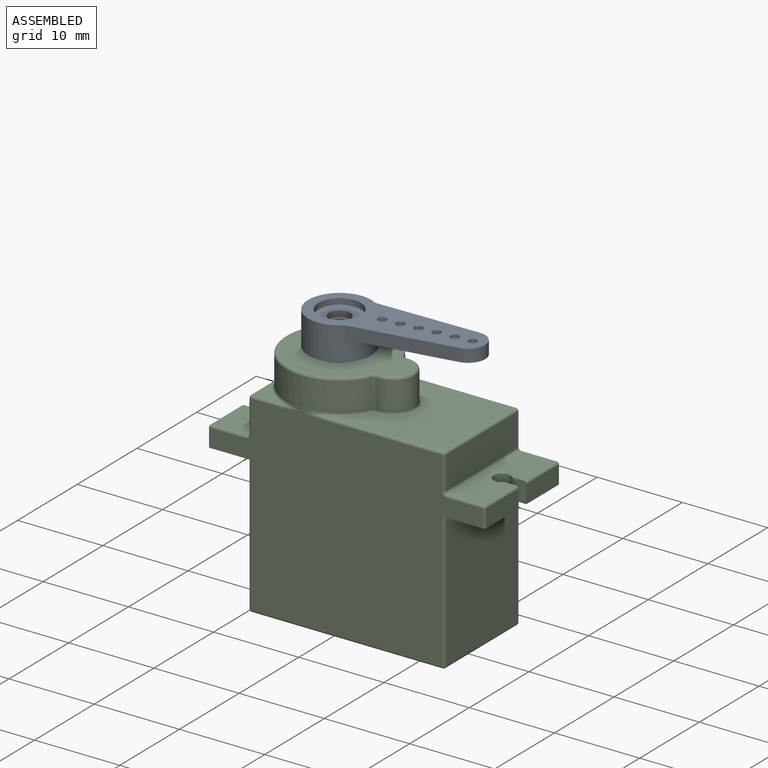
[diagram: assembled view]
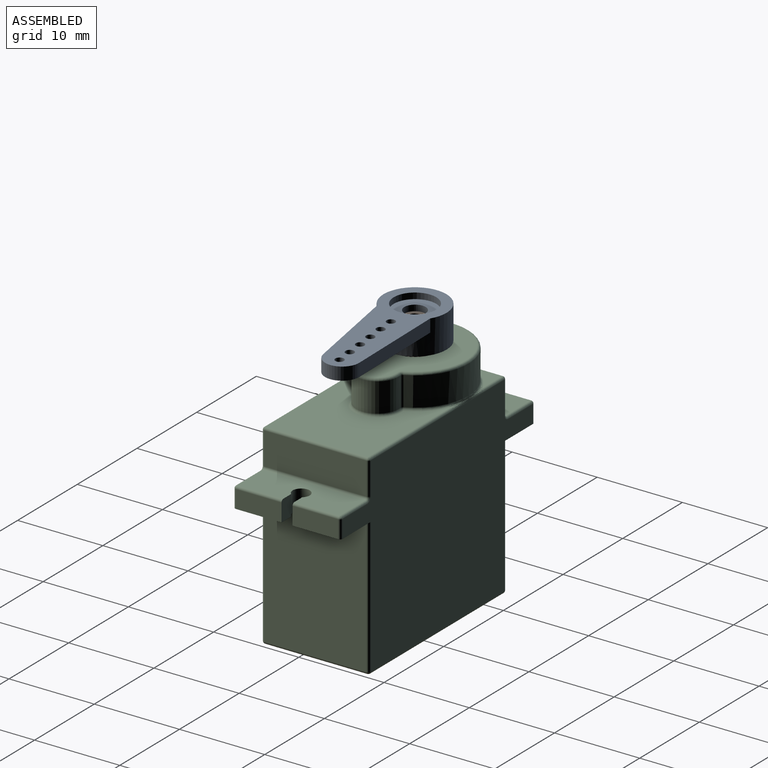
[diagram: assembled view, second angle]
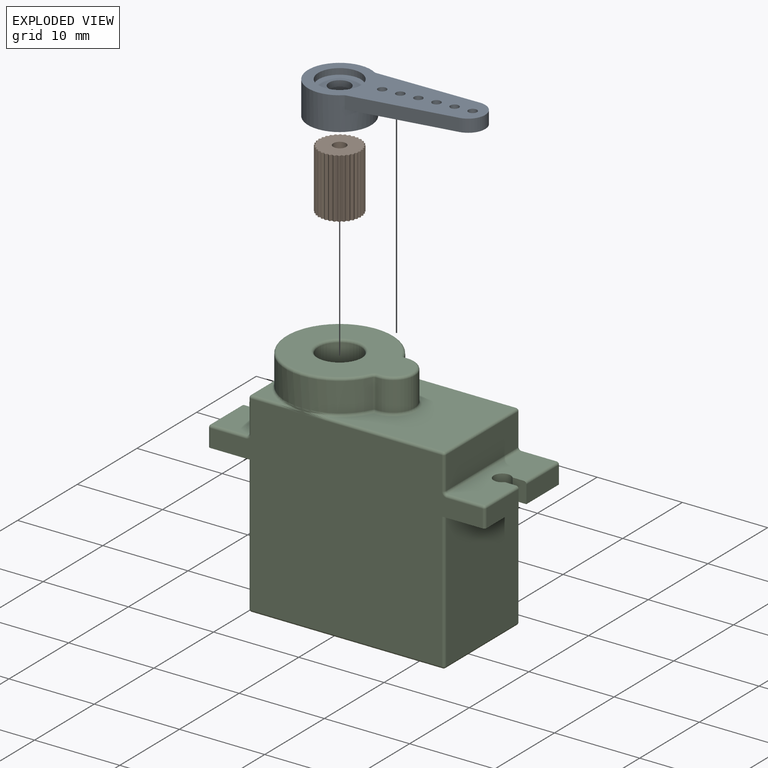
[diagram: exploded view]
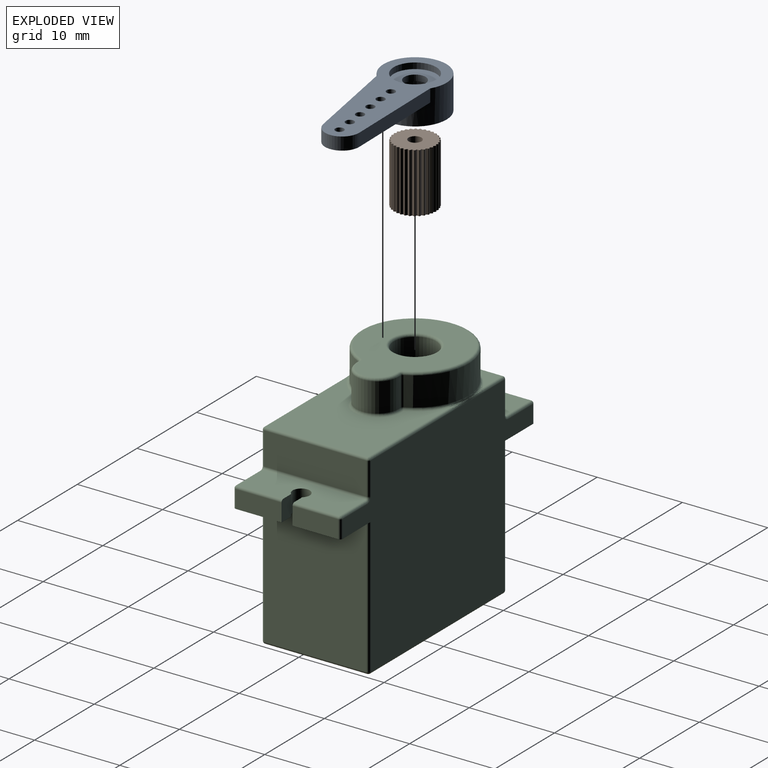
[diagram: exploded view, second angle]
ASSEMBLY  parts=3 mates=2
PART A: 18 faces, bbox 19.9x7.4x3.9 mm
  f0: cylinder r=1.25mm len=2.5mm, axis (0,0,1), area 5.5mm2, adj f1,f7
  f1: plane 5x5mm, normal (0,0,1), area 14.7mm2, adj f0,f2
  f2: cylinder r=2.5mm len=5mm, axis (0,0,1), area 11mm2, adj f1,f3
  f3: plane 19.9x7.4mm, normal (0,0,1), area 78.2mm2, adj f2,f4,f8,f9,f10,f11,f12,f13
  f4: cylinder r=3.7mm len=7.4mm, axis (0,0,1), area 80.4mm2, adj f3,f5,f8,f9,f17
  f5: plane 7.4x7.4mm, normal (0,0,-1), area 24.9mm2, adj f4,f6
  f6: cylinder r=2.4mm len=4.8mm, axis (0,0,1), area 37.7mm2, adj f5,f7
  f7: plane 4.8x4.8mm, normal (0,0,-1), area 13.2mm2, adj f0,f6
  f8: plane 12.12x1.5mm, normal (0.08,1,0), area 18.2mm2, adj f3,f4,f16,f17
  f9: plane 12.12x1.5mm, normal (0.08,-1,0), area 18.2mm2, adj f3,f4,f16,f17
  f10: cylinder r=0.5mm len=1.5mm, axis (0,0,-1), area 4.7mm2, adj f3,f17
  f11: cylinder r=0.5mm len=1.5mm, axis (0,0,-1), area 4.7mm2, adj f3,f17
  f12: cylinder r=0.5mm len=1.5mm, axis (0,0,-1), area 4.7mm2, adj f3,f17
  f13: cylinder r=0.5mm len=1.5mm, axis (0,0,-1), area 4.7mm2, adj f3,f17
  f14: cylinder r=0.5mm len=1.5mm, axis (0,0,-1), area 4.7mm2, adj f3,f17
  f15: cylinder r=0.5mm len=1.5mm, axis (0,0,-1), area 4.7mm2, adj f3,f17
  f16: cylinder r=2mm len=3.99mm, axis (0,0,-1), area 9mm2, adj f3,f8,f9,f17
  f17: plane 13.97x5.9mm, normal (0,0,-1), area 54.8mm2, adj f4,f8,f9,f10,f11,f12,f13,f14
PART B: 99 faces, bbox 5x5x7 mm
  f0: plane 4.96x4.96mm, normal (0,0,1), area 16.3mm2, adj f1,f2,f3,f4,f5,f6,f7,f8
  f1: plane 7x0.22mm, normal (-0.39,0.92,0), area 1.7mm2, adj f0,f2,f94,f95
  f2: cylinder r=0.08mm len=7mm, axis (0,0,-1), area 0.9mm2, adj f0,f1,f3,f95
  f3: plane 7x0.22mm, normal (-0.93,-0.38,0), area 1.7mm2, adj f0,f2,f4,f95
  f4: plane 7x0.2mm, normal (-0.56,0.83,0), area 1.7mm2, adj f0,f3,f5,f95
  f5: cylinder r=0.08mm len=7mm, axis (0,0,-1), area 0.9mm2, adj f0,f4,f6,f95
  f6: plane 7x0.2mm, normal (-0.83,-0.55,0), area 1.7mm2, adj f0,f5,f7,f95
  f7: plane 7x0.17mm, normal (-0.71,0.7,0), area 1.7mm2, adj f0,f6,f8,f95
  f8: cylinder r=0.08mm len=7mm, axis (0,0,-1), area 0.9mm2, adj f0,f7,f9,f95
  f9: plane 7x0.17mm, normal (-0.71,-0.7,0), area 1.7mm2, adj f0,f8,f10,f95
  f10: plane 7x0.2mm, normal (-0.83,0.55,0), area 1.7mm2, adj f0,f9,f11,f95
  f11: cylinder r=0.08mm len=7mm, axis (0,0,-1), area 0.9mm2, adj f0,f10,f12,f95
  f12: plane 7x0.2mm, normal (-0.56,-0.83,0), area 1.7mm2, adj f0,f11,f13,f95
  f13: plane 7x0.22mm, normal (-0.93,0.38,0), area 1.7mm2, adj f0,f12,f14,f95
  f14: cylinder r=0.08mm len=7mm, axis (0,0,-1), area 0.9mm2, adj f0,f13,f15,f95
  f15: plane 7x0.22mm, normal (-0.39,-0.92,0), area 1.7mm2, adj f0,f14,f16,f95
  f16: plane 7x0.23mm, normal (-0.98,0.19,0), area 1.7mm2, adj f0,f15,f17,f95
  f17: cylinder r=0.08mm len=7mm, axis (0,0,-1), area 0.9mm2, adj f0,f16,f18,f95
  f18: plane 7x0.23mm, normal (-0.2,-0.98,0), area 1.7mm2, adj f0,f17,f19,f95
  f19: plane 7x0.24mm, normal (-1,0,0), area 1.7mm2, adj f0,f18,f20,f95
  f20: cylinder r=0.08mm len=7mm, axis (0,0,-1), area 0.9mm2, adj f0,f19,f21,f95
  f21: plane 7x0.24mm, normal (0,-1,0), area 1.7mm2, adj f0,f20,f22,f95
  f22: plane 7x0.23mm, normal (-0.98,-0.2,0), area 1.7mm2, adj f0,f21,f23,f95
  f23: cylinder r=0.08mm len=7mm, axis (0,0,-1), area 0.9mm2, adj f0,f22,f24,f95
  f24: plane 7x0.23mm, normal (0.19,-0.98,0), area 1.7mm2, adj f0,f23,f25,f95
  f25: plane 7x0.22mm, normal (-0.92,-0.39,0), area 1.7mm2, adj f0,f24,f26,f95
  f26: cylinder r=0.08mm len=7mm, axis (0,0,-1), area 0.9mm2, adj f0,f25,f27,f95
  f27: plane 7x0.22mm, normal (0.38,-0.93,0), area 1.7mm2, adj f0,f26,f28,f95
  f28: plane 7x0.2mm, normal (-0.83,-0.56,0), area 1.7mm2, adj f0,f27,f29,f95
  f29: cylinder r=0.08mm len=7mm, axis (0,0,-1), area 0.9mm2, adj f0,f28,f30,f95
  f30: plane 7x0.2mm, normal (0.55,-0.83,0), area 1.7mm2, adj f0,f29,f31,f95
  f31: plane 7x0.17mm, normal (-0.7,-0.71,0), area 1.7mm2, adj f0,f30,f32,f95
  f32: cylinder r=0.08mm len=7mm, axis (0,0,-1), area 0.9mm2, adj f0,f31,f33,f95
  f33: plane 7x0.17mm, normal (0.7,-0.71,0), area 1.7mm2, adj f0,f32,f34,f95
  f34: plane 7x0.2mm, normal (-0.55,-0.83,0), area 1.7mm2, adj f0,f33,f35,f95
  f35: cylinder r=0.08mm len=7mm, axis (0,0,-1), area 0.9mm2, adj f0,f34,f36,f95
  f36: plane 7x0.2mm, normal (0.83,-0.56,0), area 1.7mm2, adj f0,f35,f37,f95
  f37: plane 7x0.22mm, normal (-0.38,-0.93,0), area 1.7mm2, adj f0,f36,f38,f95
  f38: cylinder r=0.08mm len=7mm, axis (0,0,-1), area 0.9mm2, adj f0,f37,f39,f95
  f39: plane 7x0.22mm, normal (0.92,-0.39,0), area 1.7mm2, adj f0,f38,f40,f95
  f40: plane 7x0.23mm, normal (-0.19,-0.98,0), area 1.7mm2, adj f0,f39,f41,f95
  f41: cylinder r=0.08mm len=7mm, axis (0,0,-1), area 0.9mm2, adj f0,f40,f42,f95
  f42: plane 7x0.23mm, normal (0.98,-0.2,0), area 1.7mm2, adj f0,f41,f43,f95
  f43: plane 7x0.24mm, normal (0,-1,0), area 1.7mm2, adj f0,f42,f44,f95
  f44: cylinder r=0.08mm len=7mm, axis (0,0,-1), area 0.9mm2, adj f0,f43,f45,f95
  f45: plane 7x0.24mm, normal (1,0,0), area 1.7mm2, adj f0,f44,f46,f95
  f46: plane 7x0.23mm, normal (0.2,-0.98,0), area 1.7mm2, adj f0,f45,f47,f95
  f47: cylinder r=0.08mm len=7mm, axis (0,0,-1), area 0.9mm2, adj f0,f46,f48,f95
  f48: plane 7x0.23mm, normal (0.98,0.19,0), area 1.7mm2, adj f0,f47,f49,f95
  f49: plane 7x0.22mm, normal (0.39,-0.92,0), area 1.7mm2, adj f0,f48,f50,f95
  f50: cylinder r=0.08mm len=7mm, axis (0,0,-1), area 0.9mm2, adj f0,f49,f51,f95
  f51: plane 7x0.22mm, normal (0.93,0.38,0), area 1.7mm2, adj f0,f50,f52,f95
  f52: plane 7x0.2mm, normal (0.56,-0.83,0), area 1.7mm2, adj f0,f51,f53,f95
  f53: cylinder r=0.08mm len=7mm, axis (0,0,-1), area 0.9mm2, adj f0,f52,f54,f95
  f54: plane 7x0.2mm, normal (0.83,0.55,0), area 1.7mm2, adj f0,f53,f55,f95
  f55: plane 7x0.17mm, normal (0.71,-0.7,0), area 1.7mm2, adj f0,f54,f56,f95
  f56: cylinder r=0.08mm len=7mm, axis (0,0,-1), area 0.9mm2, adj f0,f55,f57,f95
  f57: plane 7x0.17mm, normal (0.71,0.7,0), area 1.7mm2, adj f0,f56,f58,f95
  f58: plane 7x0.2mm, normal (0.83,-0.55,0), area 1.7mm2, adj f0,f57,f59,f95
  f59: cylinder r=0.08mm len=7mm, axis (0,0,-1), area 0.9mm2, adj f0,f58,f60,f95
  f60: plane 7x0.2mm, normal (0.56,0.83,0), area 1.7mm2, adj f0,f59,f61,f95
  f61: plane 7x0.22mm, normal (0.93,-0.38,0), area 1.7mm2, adj f0,f60,f62,f95
  f62: cylinder r=0.08mm len=7mm, axis (0,0,-1), area 0.9mm2, adj f0,f61,f63,f95
  f63: plane 7x0.22mm, normal (0.39,0.92,0), area 1.7mm2, adj f0,f62,f64,f95
  f64: plane 7x0.23mm, normal (0.98,-0.19,0), area 1.7mm2, adj f0,f63,f65,f95
  f65: cylinder r=0.08mm len=7mm, axis (0,0,-1), area 0.9mm2, adj f0,f64,f66,f95
  f66: plane 7x0.23mm, normal (0.2,0.98,0), area 1.7mm2, adj f0,f65,f67,f95
  f67: plane 7x0.24mm, normal (1,0,0), area 1.7mm2, adj f0,f66,f68,f95
  f68: cylinder r=0.08mm len=7mm, axis (0,0,-1), area 0.9mm2, adj f0,f67,f69,f95
  f69: plane 7x0.24mm, normal (0,1,0), area 1.7mm2, adj f0,f68,f70,f95
  f70: plane 7x0.23mm, normal (0.98,0.2,0), area 1.7mm2, adj f0,f69,f71,f95
  f71: cylinder r=0.08mm len=7mm, axis (0,0,-1), area 0.9mm2, adj f0,f70,f72,f95
  f72: plane 7x0.23mm, normal (-0.19,0.98,0), area 1.7mm2, adj f0,f71,f73,f95
  f73: plane 7x0.22mm, normal (0.92,0.39,0), area 1.7mm2, adj f0,f72,f74,f95
  f74: cylinder r=0.08mm len=7mm, axis (0,0,-1), area 0.9mm2, adj f0,f73,f75,f95
  f75: plane 7x0.22mm, normal (-0.38,0.93,0), area 1.7mm2, adj f0,f74,f76,f95
  f76: plane 7x0.2mm, normal (0.83,0.56,0), area 1.7mm2, adj f0,f75,f77,f95
  f77: cylinder r=0.08mm len=7mm, axis (0,0,-1), area 0.9mm2, adj f0,f76,f78,f95
  f78: plane 7x0.2mm, normal (-0.55,0.83,0), area 1.7mm2, adj f0,f77,f79,f95
  f79: plane 7x0.17mm, normal (0.7,0.71,0), area 1.7mm2, adj f0,f78,f80,f95
  f80: cylinder r=0.08mm len=7mm, axis (0,0,-1), area 0.9mm2, adj f0,f79,f81,f95
  f81: plane 7x0.17mm, normal (-0.7,0.71,0), area 1.7mm2, adj f0,f80,f82,f95
  f82: plane 7x0.2mm, normal (0.55,0.83,0), area 1.7mm2, adj f0,f81,f83,f95
  f83: cylinder r=0.08mm len=7mm, axis (0,0,-1), area 0.9mm2, adj f0,f82,f84,f95
  f84: plane 7x0.2mm, normal (-0.83,0.56,0), area 1.7mm2, adj f0,f83,f85,f95
  f85: plane 7x0.22mm, normal (0.38,0.93,0), area 1.7mm2, adj f0,f84,f86,f95
  f86: cylinder r=0.08mm len=7mm, axis (0,0,-1), area 0.9mm2, adj f0,f85,f87,f95
  f87: plane 7x0.22mm, normal (-0.92,0.39,0), area 1.7mm2, adj f0,f86,f88,f95
  f88: plane 7x0.23mm, normal (0.19,0.98,0), area 1.7mm2, adj f0,f87,f89,f95
  f89: cylinder r=0.08mm len=7mm, axis (0,0,-1), area 0.9mm2, adj f0,f88,f90,f95
  f90: plane 7x0.23mm, normal (-0.98,0.2,0), area 1.7mm2, adj f0,f89,f91,f95
  f91: plane 7x0.24mm, normal (0,1,0), area 1.7mm2, adj f0,f90,f92,f95
  f92: cylinder r=0.08mm len=7mm, axis (0,0,-1), area 0.9mm2, adj f0,f91,f93,f95
  f93: plane 7x0.24mm, normal (-1,0,0), area 1.7mm2, adj f0,f92,f95,f97
  f94: plane 7x0.23mm, normal (-0.98,-0.19,0), area 1.7mm2, adj f0,f1,f95,f98
  f95: plane 4.96x4.96mm, normal (0,0,-1), area 16.3mm2, adj f1,f2,f3,f4,f5,f6,f7,f8
  f96: cylinder r=0.75mm len=7mm, axis (0,0,-1), area 33mm2, adj f0,f95
  f97: plane 7x0.23mm, normal (-0.2,0.98,0), area 1.7mm2, adj f0,f93,f95,f98
  f98: cylinder r=0.08mm len=7mm, axis (0,0,-1), area 0.9mm2, adj f0,f94,f95,f97
PART C: 117 faces, bbox 32.5x13.6x27 mm
  f0: plane 12x3.8mm, normal (-1,0,0), area 45.6mm2, adj f43,f44,f61,f62,f68,f69,f74
  f1: plane 5.35x2.1mm, normal (1,0,0), area 11.2mm2, adj f4,f29,f99,f102
  f2: plane 5.35x2.1mm, normal (-1,0,0), area 11.2mm2, adj f3,f26,f49,f50
  f3: plane 12.6x5.05mm, normal (0,0,-1), area 54.8mm2, adj f2,f9,f10,f11,f17,f25,f26,f27
  f4: plane 12.6x5.05mm, normal (0,0,-1), area 54.8mm2, adj f1,f9,f10,f13,f14,f28,f29,f30
  f5: plane 12x4.15mm, normal (0,0,1), area 45.2mm2, adj f28,f29,f30,f86,f93,f97,f100,f102
  f6: plane 12x4.15mm, normal (0,0,1), area 45.2mm2, adj f25,f26,f27,f46,f50,f51,f56,f61
  f7: plane 13.65x12mm, normal (0,0,1), area 118.8mm2, adj f60,f65,f72,f73,f83,f84,f90,f91
  f8: plane 3.25x3.25mm, normal (0,0,1), area 4mm2, adj f74,f75,f76
  f9: plane 31.9x22.4mm, normal (0,1,0), area 521.9mm2, adj f3,f4,f36,f47,f51,f55,f62,f76
  f10: plane 31.9x22.4mm, normal (0,-1,0), area 521.9mm2, adj f3,f4,f34,f35,f49,f56,f66,f68
  f11: plane 15.9x12mm, normal (-1,0,0), area 190.8mm2, adj f3,f105,f107,f108
  f12: plane 22.4x12mm, normal (0,0,-1), area 268.8mm2, adj f108,f109,f113,f114
  f13: plane 15.9x12mm, normal (1,0,0), area 190.8mm2, adj f4,f110,f114,f116
  f14: plane 5.35x2.1mm, normal (1,0,0), area 11.2mm2, adj f4,f30,f85,f86
  f15: plane 12x3.8mm, normal (1,0,0), area 45.6mm2, adj f91,f92,f96,f97
  f16: plane 3.25x3.25mm, normal (0,0,1), area 4mm2, adj f69,f81,f82
  f17: plane 5.35x2.1mm, normal (-1,0,0), area 11.2mm2, adj f3,f25,f46,f47
  f18: plane 14.5x12mm, normal (0,0,1), area 98mm2, adj f52,f53,f57,f58,f59,f64,f103
  f19: cylinder r=2.5mm len=5mm, axis (0,0,-1), area 26.7mm2, adj f20,f22,f53,f65
  f20: plane 3.4x0.32mm, normal (0,-1,0), area 1.1mm2, adj f19,f59,f71,f72
  f21: cylinder r=2.5mm len=5mm, axis (0,0,-1), area 53.4mm2, adj f103,f104
  f22: plane 3.4x0.32mm, normal (0,1,0), area 1.1mm2, adj f19,f52,f60,f63
  f23: cylinder r=6.3mm len=12.6mm, axis (0,0,-1), area 115.8mm2, adj f31,f32,f38,f39,f41,f58,f63,f71
  f24: plane 4.4x4.4mm, normal (0,0,1), area 15.2mm2, adj f104
  f25: plane 2.4x1.62mm, normal (0,-1,0), area 3.9mm2, adj f3,f6,f17,f27,f46
  f26: plane 2.4x1.62mm, normal (0,1,0), area 3.9mm2, adj f2,f3,f6,f27,f50
  f27: cylinder r=1mm len=2.4mm, axis (0,0,-1), area 11.7mm2, adj f3,f6,f25,f26
  f28: cylinder r=1mm len=2.4mm, axis (0,0,-1), area 11.7mm2, adj f4,f5,f29,f30
  f29: plane 2.4x1.62mm, normal (0,1,0), area 3.9mm2, adj f1,f4,f5,f28,f102
  f30: plane 2.4x1.62mm, normal (0,-1,0), area 3.9mm2, adj f4,f5,f14,f28,f86
  f31: bspline ~2.65x0.57mm, area 0.6mm2, adj f23,f32,f83,f87
  f32: bspline ~2.65x0.57mm, area 0.6mm2, adj f23,f31,f33,f82
  f33: bspline ~2.75x0.48mm, area 0.5mm2, adj f32,f34,f81,f82
  f34: bspline ~2.75x0.3mm, area 0.7mm2, adj f10,f33,f35,f81
  f35: bspline ~2.75x0.3mm, area 0.7mm2, adj f10,f34,f87,f90
  f36: bspline ~2.75x0.3mm, area 0.7mm2, adj f9,f37,f76,f80
  f37: bspline ~2.75x0.48mm, area 0.5mm2, adj f36,f38,f75,f76
  f38: bspline ~2.65x0.57mm, area 0.6mm2, adj f23,f37,f39,f75
  f39: bspline ~2.65x0.57mm, area 0.6mm2, adj f23,f38,f40,f73
  f40: bspline ~2.75x0.48mm, area 0.5mm2, adj f39,f73,f80,f84
  f41: bspline ~2.65x0.57mm, area 0.6mm2, adj f23,f42,f75,f78
  f42: bspline ~2.75x0.48mm, area 0.5mm2, adj f41,f43,f74,f75
  f43: bspline ~2.75x0.3mm, area 0.7mm2, adj f0,f42,f44,f74
  f44: bspline ~2.75x0.3mm, area 0.7mm2, adj f0,f43,f45,f69
  f45: bspline ~2.75x0.48mm, area 0.5mm2, adj f44,f69,f78,f82
  f46: cylinder r=0.3mm len=5.35mm, axis (0,-1,0), area 2.5mm2, adj f6,f17,f25,f48
  f47: cylinder r=0.3mm len=2.1mm, axis (0,0,-1), area 1mm2, adj f3,f9,f17,f48
  f48: sphere r=0.3mm, area 0.2mm2, adj f46,f47,f51
  f49: cylinder r=0.3mm len=2.1mm, axis (0,0,1), area 1mm2, adj f2,f3,f10,f54
  f50: cylinder r=0.3mm len=5.35mm, axis (0,-1,0), area 2.5mm2, adj f2,f6,f26,f54
  f51: cylinder r=0.3mm len=4.15mm, axis (-1,0,0), area 2mm2, adj f6,f9,f48,f55
  f52: cylinder r=0.3mm len=0.32mm, axis (1,0,0), area 0.2mm2, adj f18,f22,f53,f57
  f53: torus R=2.2mm, axis (0,0,1), area 3.5mm2, adj f18,f19,f52,f59
  f54: sphere r=0.3mm, area 0.1mm2, adj f49,f50,f56
  f55: torus R=0.6mm, axis (0,1,0), area 0.3mm2, adj f9,f51,f61,f62
  f56: cylinder r=0.3mm len=4.15mm, axis (1,0,0), area 2mm2, adj f6,f10,f54,f66
  f57: torus R=0.6mm, axis (0,0,1), area 0.2mm2, adj f18,f52,f58,f63
  f58: torus R=6mm, axis (0,0,1), area 15.8mm2, adj f18,f23,f57,f64
  f59: cylinder r=0.3mm len=0.32mm, axis (-1,0,0), area 0.2mm2, adj f18,f20,f53,f64
  f60: cylinder r=0.3mm len=0.32mm, axis (-1,0,0), area 0.2mm2, adj f7,f22,f65,f70
  f61: cylinder r=0.3mm len=12mm, axis (0,1,0), area 5.7mm2, adj f0,f6,f55,f66
  f62: cylinder r=0.3mm len=3.8mm, axis (0,0,-1), area 1.8mm2, adj f0,f9,f55,f67
  f63: cylinder r=0.3mm len=3.4mm, axis (0,0,-1), area 1.2mm2, adj f22,f23,f57,f70
  f64: torus R=0.6mm, axis (0,0,1), area 0.2mm2, adj f18,f58,f59,f71
  f65: torus R=2.8mm, axis (0,0,1), area 3.9mm2, adj f7,f19,f60,f72
  f66: torus R=0.6mm, axis (0,1,0), area 0.3mm2, adj f10,f56,f61,f68
  f67: sphere r=0.3mm, area 0.2mm2, adj f62,f74,f76
  f68: cylinder r=0.3mm len=3.8mm, axis (0,0,1), area 1.8mm2, adj f0,f10,f66,f77
  f69: cylinder r=0.3mm len=3.27mm, axis (0,-1,0), area 1.5mm2, adj f0,f16,f44,f45,f77
  f70: sphere r=0.3mm, area 0.1mm2, adj f60,f63,f73
  f71: cylinder r=0.3mm len=3.4mm, axis (0,0,-1), area 1.2mm2, adj f20,f23,f64,f79
  f72: cylinder r=0.3mm len=0.32mm, axis (1,0,0), area 0.2mm2, adj f7,f20,f65,f79
  f73: torus R=6.6mm, axis (0,0,1), area 2.1mm2, adj f7,f23,f39,f40,f70
  f74: cylinder r=0.3mm len=3.27mm, axis (0,-1,0), area 1.5mm2, adj f0,f8,f42,f43,f67
  f75: torus R=6.6mm, axis (0,0,1), area 2.2mm2, adj f8,f23,f37,f38,f41,f42
  f76: cylinder r=0.3mm len=3.27mm, axis (-1,0,0), area 1.5mm2, adj f8,f9,f36,f37,f67
  f77: sphere r=0.3mm, area 0.1mm2, adj f68,f69,f81
  f78: bspline ~2.65x0.57mm, area 0.6mm2, adj f23,f41,f45,f82
  f79: sphere r=0.3mm, area 0.1mm2, adj f71,f72,f83
  f80: bspline ~2.75x0.3mm, area 0.7mm2, adj f9,f36,f40,f84
  f81: cylinder r=0.3mm len=3.27mm, axis (1,0,0), area 1.5mm2, adj f10,f16,f33,f34,f77
  f82: torus R=6.6mm, axis (0,0,1), area 2.2mm2, adj f16,f23,f32,f33,f45,f78
  f83: torus R=6.6mm, axis (0,0,1), area 2.1mm2, adj f7,f23,f31,f79,f87
  f84: cylinder r=0.3mm len=13.67mm, axis (-1,0,0), area 6.4mm2, adj f7,f9,f40,f80,f88
  f85: cylinder r=0.3mm len=2.1mm, axis (0,0,1), area 1mm2, adj f4,f9,f14,f89
  f86: cylinder r=0.3mm len=5.35mm, axis (0,1,0), area 2.5mm2, adj f5,f14,f30,f89
  f87: bspline ~2.75x0.48mm, area 0.5mm2, adj f31,f35,f83,f90
  f88: sphere r=0.3mm, area 0.1mm2, adj f84,f91,f92
  f89: sphere r=0.3mm, area 0.1mm2, adj f85,f86,f93
  f90: cylinder r=0.3mm len=13.67mm, axis (1,0,0), area 6.4mm2, adj f7,f10,f35,f87,f94
  f91: cylinder r=0.3mm len=12mm, axis (0,1,0), area 5.7mm2, adj f7,f15,f88,f94
  f92: cylinder r=0.3mm len=3.8mm, axis (0,0,1), area 1.8mm2, adj f9,f15,f88,f95
  f93: cylinder r=0.3mm len=4.15mm, axis (-1,0,0), area 2mm2, adj f5,f9,f89,f95
  f94: sphere r=0.3mm, area 0.1mm2, adj f90,f91,f96
  f95: torus R=0.6mm, axis (0,1,0), area 0.3mm2, adj f9,f92,f93,f97
  f96: cylinder r=0.3mm len=3.8mm, axis (0,0,-1), area 1.8mm2, adj f10,f15,f94,f98
  f97: cylinder r=0.3mm len=12mm, axis (0,-1,0), area 5.7mm2, adj f5,f15,f95,f98
  f98: torus R=0.6mm, axis (0,1,0), area 0.3mm2, adj f10,f96,f97,f100
  f99: cylinder r=0.3mm len=2.1mm, axis (0,0,-1), area 1mm2, adj f1,f4,f10,f101
  f100: cylinder r=0.3mm len=4.15mm, axis (1,0,0), area 2mm2, adj f5,f10,f98,f101
  f101: sphere r=0.3mm, area 0.1mm2, adj f99,f100,f102
  f102: cylinder r=0.3mm len=5.35mm, axis (0,1,0), area 2.5mm2, adj f1,f5,f29,f101
  f103: torus R=2.8mm, axis (0,0,1), area 7.7mm2, adj f18,f21
  f104: torus R=2.2mm, axis (0,0,1), area 7.1mm2, adj f21,f24
  f105: cylinder r=0.3mm len=15.9mm, axis (0,0,1), area 7.5mm2, adj f3,f10,f11,f106
  f106: sphere r=0.3mm, area 0.1mm2, adj f105,f108,f109
  f107: cylinder r=0.3mm len=15.9mm, axis (0,0,-1), area 7.5mm2, adj f3,f9,f11,f111
  f108: cylinder r=0.3mm len=12mm, axis (0,1,0), area 5.7mm2, adj f11,f12,f106,f111
  f109: cylinder r=0.3mm len=22.4mm, axis (-1,0,0), area 10.6mm2, adj f10,f12,f106,f112
  f110: cylinder r=0.3mm len=15.9mm, axis (0,0,-1), area 7.5mm2, adj f4,f10,f13,f112
  f111: sphere r=0.3mm, area 0.2mm2, adj f107,f108,f113
  f112: sphere r=0.3mm, area 0.1mm2, adj f109,f110,f114
  f113: cylinder r=0.3mm len=22.4mm, axis (1,0,0), area 10.6mm2, adj f9,f12,f111,f115
  f114: cylinder r=0.3mm len=12mm, axis (0,-1,0), area 5.7mm2, adj f12,f13,f112,f115
  f115: sphere r=0.3mm, area 0.1mm2, adj f113,f114,f116
  f116: cylinder r=0.3mm len=15.9mm, axis (0,0,1), area 7.5mm2, adj f4,f9,f13,f115
PLACE A rot(axis=(0,0,1),5.4deg) t=(-0.02,0.49,11.4)mm
PLACE B t=(0,0,11.5)mm
PLACE C t=(0,0,11.5)mm
MATE fastened B.f96 <-> C.f21  axis (0,0,-1) through (-5.2,0,23)mm
MATE revolute A.f0 <-> B.f96  axis (0,0,1) through (-5.2,0,30)mm
